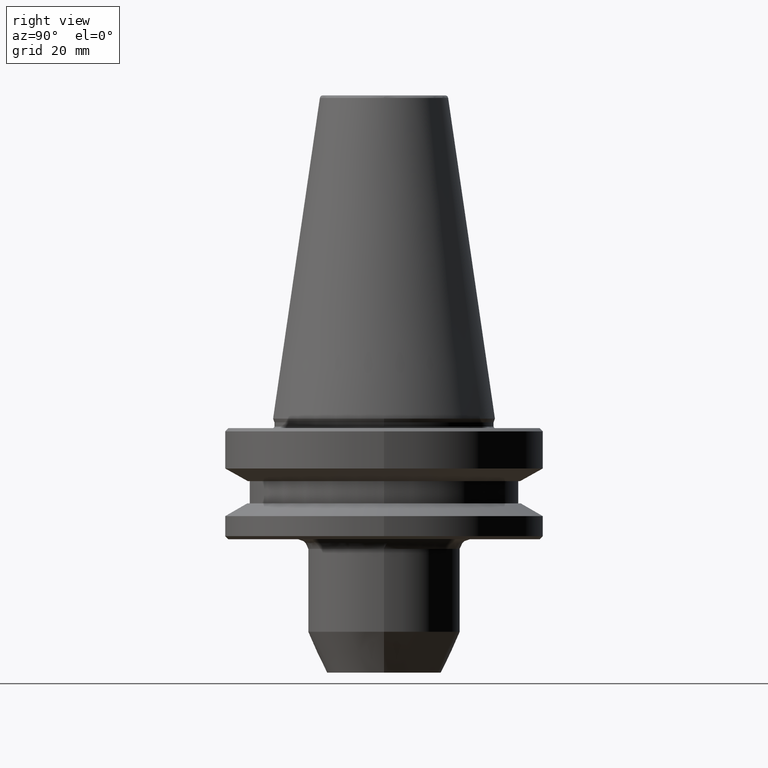
[diagram: clean part render]
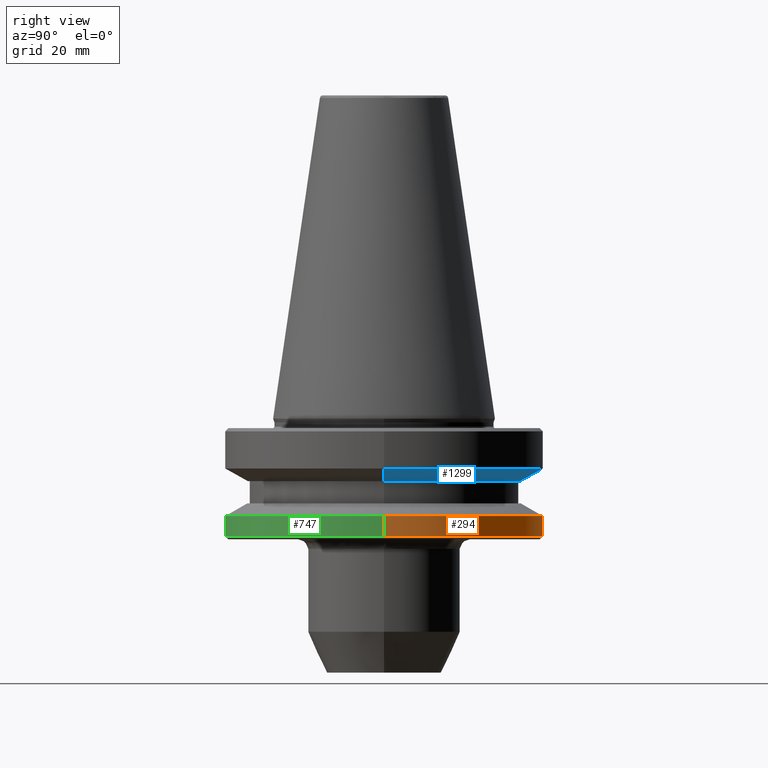
[diagram: same view with three faces highlighted in distinct colors, each labeled with its STEP entity id]
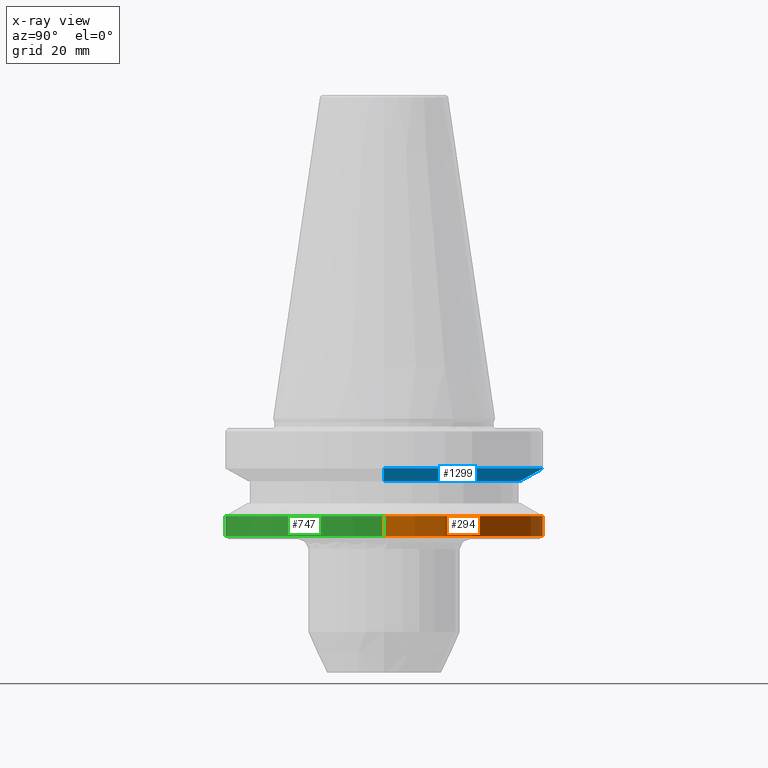
[diagram: x-ray of the same camera — body ghosted, the three highlighted faces saturated]
A machine part, right view with three faces highlighted in distinct colors.
The next image is the same camera in x-ray (body ghosted, the three faces saturated) — at least one of them is partly hidden behind the body in this view.
Their STEP definitions:

[orange] entity #294 — the highlighted cylindrical surface (partial cylindrical patch) has radius 50 mm, axis along (0, 0, 1).
#16 = DIRECTION ( 'NONE',  ( 0.0000000000000000000, 0.0000000000000000000, 1.000000000000000000 ) ) ;
#25 = VERTEX_POINT ( 'NONE', #1159 ) ;
#57 = VECTOR ( 'NONE', #1142, 1000.000000000000000 ) ;
#83 = EDGE_CURVE ( 'NONE', #25, #229, #196, .T. ) ;
#133 = CIRCLE ( 'NONE', #1103, 50.00000000000000000 ) ;
#159 = ORIENTED_EDGE ( 'NONE', *, *, #83, .F. ) ;
#168 = CIRCLE ( 'NONE', #873, 50.00000000000000000 ) ;
#184 = CIRCLE ( 'NONE', #708, 50.00000000000000000 ) ;
#196 = LINE ( 'NONE', #354, #57 ) ;
#216 = VERTEX_POINT ( 'NONE', #488 ) ;
#229 = VERTEX_POINT ( 'NONE', #1056 ) ;
#235 = CYLINDRICAL_SURFACE ( 'NONE', #1060, 50.00000000000000000 ) ;
#294 = ADVANCED_FACE ( 'NONE', ( #893 ), #235, .T. ) ;
#310 = ORIENTED_EDGE ( 'NONE', *, *, #417, .T. ) ;
#354 = CARTESIAN_POINT ( 'NONE',  ( 50.00000000000000000, 0.0000000000000000000, 124.5046326327850600 ) ) ;
#358 = ORIENTED_EDGE ( 'NONE', *, *, #581, .F. ) ;
#417 = EDGE_CURVE ( 'NONE', #1315, #1010, #1109, .T. ) ;
#436 = CARTESIAN_POINT ( 'NONE',  ( -50.00000000000000000, 6.123233995736766100E-015, -37.00000000000002100 ) ) ;
#488 = CARTESIAN_POINT ( 'NONE',  ( 0.0000000000000000000, 50.00000000000000000, -30.69977999677324500 ) ) ;
#496 = ORIENTED_EDGE ( 'NONE', *, *, #497, .T. ) ;
#497 = EDGE_CURVE ( 'NONE', #25, #1315, #168, .T. ) ;
#540 = DIRECTION ( 'NONE',  ( -1.000000000000000000, -8.881784197001252300E-016, 0.0000000000000000000 ) ) ;
#543 = DIRECTION ( 'NONE',  ( -0.0000000000000000000, -0.0000000000000000000, 1.000000000000000000 ) ) ;
#544 = CARTESIAN_POINT ( 'NONE',  ( 0.0000000000000000000, 0.0000000000000000000, -30.69977999677324500 ) ) ;
#555 = VECTOR ( 'NONE', #1324, 1000.000000000000000 ) ;
#581 = EDGE_CURVE ( 'NONE', #229, #216, #133, .T. ) ;
#703 = ORIENTED_EDGE ( 'NONE', *, *, #1220, .F. ) ;
#708 = AXIS2_PLACEMENT_3D ( 'NONE', #544, #543, #540 ) ;
#715 = DIRECTION ( 'NONE',  ( 1.000000000000000000, 0.0000000000000000000, 0.0000000000000000000 ) ) ;
#814 = CARTESIAN_POINT ( 'NONE',  ( -50.00000000000000000, 6.123233995736766100E-015, -30.69977999677324500 ) ) ;
#832 = CARTESIAN_POINT ( 'NONE',  ( 0.0000000000000000000, 0.0000000000000000000, 124.5046326327850600 ) ) ;
#873 = AXIS2_PLACEMENT_3D ( 'NONE', #1245, #1321, #1243 ) ;
#893 = FACE_OUTER_BOUND ( 'NONE', #1266, .T. ) ;
#1010 = VERTEX_POINT ( 'NONE', #814 ) ;
#1056 = CARTESIAN_POINT ( 'NONE',  ( 50.00000000000000000, 0.0000000000000000000, -30.69977999677324500 ) ) ;
#1058 = CARTESIAN_POINT ( 'NONE',  ( 0.0000000000000000000, 0.0000000000000000000, -30.69977999677324500 ) ) ;
#1060 = AXIS2_PLACEMENT_3D ( 'NONE', #832, #16, #715 ) ;
#1103 = AXIS2_PLACEMENT_3D ( 'NONE', #1058, #1108, #1204 ) ;
#1108 = DIRECTION ( 'NONE',  ( -0.0000000000000000000, -0.0000000000000000000, 1.000000000000000000 ) ) ;
#1109 = LINE ( 'NONE', #1310, #555 ) ;
#1142 = DIRECTION ( 'NONE',  ( 0.0000000000000000000, 0.0000000000000000000, 1.000000000000000000 ) ) ;
#1159 = CARTESIAN_POINT ( 'NONE',  ( 50.00000000000000000, 0.0000000000000000000, -37.00000000000002100 ) ) ;
#1204 = DIRECTION ( 'NONE',  ( -1.000000000000000000, 0.0000000000000000000, 0.0000000000000000000 ) ) ;
#1220 = EDGE_CURVE ( 'NONE', #216, #1010, #184, .T. ) ;
#1243 = DIRECTION ( 'NONE',  ( 1.000000000000000000, 0.0000000000000000000, 0.0000000000000000000 ) ) ;
#1245 = CARTESIAN_POINT ( 'NONE',  ( 0.0000000000000000000, 0.0000000000000000000, -37.00000000000002100 ) ) ;
#1266 = EDGE_LOOP ( 'NONE', ( #496, #310, #703, #358, #159 ) ) ;
#1310 = CARTESIAN_POINT ( 'NONE',  ( -50.00000000000000000, 6.123233995736766100E-015, 124.5046326327850600 ) ) ;
#1315 = VERTEX_POINT ( 'NONE', #436 ) ;
#1321 = DIRECTION ( 'NONE',  ( 0.0000000000000000000, 0.0000000000000000000, 1.000000000000000000 ) ) ;
#1324 = DIRECTION ( 'NONE',  ( 0.0000000000000000000, 0.0000000000000000000, 1.000000000000000000 ) ) ;

[blue] entity #1299 — the highlighted conical surface has half-angle 60 deg.
#108 = VERTEX_POINT ( 'NONE', #521 ) ;
#173 = ORIENTED_EDGE ( 'NONE', *, *, #1100, .F. ) ;
#264 = EDGE_LOOP ( 'NONE', ( #545, #559, #734, #173 ) ) ;
#307 = VECTOR ( 'NONE', #438, 1000.000000000000000 ) ;
#405 = AXIS2_PLACEMENT_3D ( 'NONE', #466, #459, #485 ) ;
#411 = DIRECTION ( 'NONE',  ( 1.000000000000000000, 0.0000000000000000000, 0.0000000000000000000 ) ) ;
#415 = DIRECTION ( 'NONE',  ( 0.0000000000000000000, -0.0000000000000000000, 1.000000000000000000 ) ) ;
#420 = CARTESIAN_POINT ( 'NONE',  ( 0.0000000000000000000, 0.0000000000000000000, -19.70000000000001000 ) ) ;
#438 = DIRECTION ( 'NONE',  ( -0.8660254037844388200, 1.060575238724907200E-016, 0.4999999999999997200 ) ) ;
#455 = CARTESIAN_POINT ( 'NONE',  ( -50.00000000000000000, 6.123233995736766100E-015, -15.70022000322675400 ) ) ;
#459 = DIRECTION ( 'NONE',  ( 0.0000000000000000000, -0.0000000000000000000, 1.000000000000000000 ) ) ;
#466 = CARTESIAN_POINT ( 'NONE',  ( 0.0000000000000000000, 0.0000000000000000000, -15.70022000322675400 ) ) ;
#483 = VERTEX_POINT ( 'NONE', #1326 ) ;
#485 = DIRECTION ( 'NONE',  ( 1.000000000000000000, 0.0000000000000000000, 0.0000000000000000000 ) ) ;
#521 = CARTESIAN_POINT ( 'NONE',  ( -50.00000000000000000, 6.123233995736766100E-015, -15.70022000322675400 ) ) ;
#545 = ORIENTED_EDGE ( 'NONE', *, *, #1323, .T. ) ;
#549 = DIRECTION ( 'NONE',  ( 1.000000000000000000, 0.0000000000000000000, 0.0000000000000000000 ) ) ;
#551 = DIRECTION ( 'NONE',  ( 0.0000000000000000000, 0.0000000000000000000, 1.000000000000000000 ) ) ;
#552 = CARTESIAN_POINT ( 'NONE',  ( 0.0000000000000000000, 0.0000000000000000000, -15.70022000322675400 ) ) ;
#559 = ORIENTED_EDGE ( 'NONE', *, *, #1306, .T. ) ;
#571 = AXIS2_PLACEMENT_3D ( 'NONE', #552, #551, #549 ) ;
#680 = CARTESIAN_POINT ( 'NONE',  ( 50.00000000000000000, 0.0000000000000000000, -15.70022000322675400 ) ) ;
#734 = ORIENTED_EDGE ( 'NONE', *, *, #1216, .F. ) ;
#749 = DIRECTION ( 'NONE',  ( 0.8660254037844388200, 0.0000000000000000000, 0.4999999999999997200 ) ) ;
#784 = CARTESIAN_POINT ( 'NONE',  ( 50.00000000000000000, 0.0000000000000000000, -15.70022000322675400 ) ) ;
#847 = AXIS2_PLACEMENT_3D ( 'NONE', #420, #415, #411 ) ;
#862 = CONICAL_SURFACE ( 'NONE', #405, 50.00000000000000000, 1.047197551196598100 ) ;
#877 = VERTEX_POINT ( 'NONE', #892 ) ;
#892 = CARTESIAN_POINT ( 'NONE',  ( -43.07217782649103600, 5.699027233244276000E-015, -19.70000000000001000 ) ) ;
#896 = FACE_OUTER_BOUND ( 'NONE', #264, .T. ) ;
#1006 = LINE ( 'NONE', #680, #1009 ) ;
#1009 = VECTOR ( 'NONE', #749, 1000.000000000000000 ) ;
#1033 = VERTEX_POINT ( 'NONE', #784 ) ;
#1100 = EDGE_CURVE ( 'NONE', #483, #1033, #1006, .T. ) ;
#1160 = CIRCLE ( 'NONE', #847, 43.07217782649103600 ) ;
#1167 = LINE ( 'NONE', #455, #307 ) ;
#1216 = EDGE_CURVE ( 'NONE', #1033, #108, #1293, .T. ) ;
#1293 = CIRCLE ( 'NONE', #571, 50.00000000000000000 ) ;
#1299 = ADVANCED_FACE ( 'NONE', ( #896 ), #862, .T. ) ;
#1306 = EDGE_CURVE ( 'NONE', #877, #108, #1167, .T. ) ;
#1323 = EDGE_CURVE ( 'NONE', #483, #877, #1160, .T. ) ;
#1326 = CARTESIAN_POINT ( 'NONE',  ( 43.07217782649103600, 0.0000000000000000000, -19.70000000000001000 ) ) ;

[green] entity #747 — the highlighted cylindrical surface (partial cylindrical patch) has radius 50 mm, axis along (0, 0, 1).
#13 = EDGE_CURVE ( 'NONE', #1315, #25, #288, .T. ) ;
#21 = AXIS2_PLACEMENT_3D ( 'NONE', #1164, #1210, #100 ) ;
#25 = VERTEX_POINT ( 'NONE', #1159 ) ;
#39 = AXIS2_PLACEMENT_3D ( 'NONE', #1087, #1095, #1088 ) ;
#57 = VECTOR ( 'NONE', #1142, 1000.000000000000000 ) ;
#76 = EDGE_CURVE ( 'NONE', #1010, #1150, #482, .T. ) ;
#83 = EDGE_CURVE ( 'NONE', #25, #229, #196, .T. ) ;
#100 = DIRECTION ( 'NONE',  ( 1.000000000000000000, 0.0000000000000000000, 0.0000000000000000000 ) ) ;
#147 = EDGE_CURVE ( 'NONE', #1150, #229, #334, .T. ) ;
#196 = LINE ( 'NONE', #354, #57 ) ;
#199 = EDGE_LOOP ( 'NONE', ( #520, #1137, #542, #1148, #487 ) ) ;
#229 = VERTEX_POINT ( 'NONE', #1056 ) ;
#232 = AXIS2_PLACEMENT_3D ( 'NONE', #924, #598, #505 ) ;
#288 = CIRCLE ( 'NONE', #21, 50.00000000000000000 ) ;
#313 = DIRECTION ( 'NONE',  ( -1.000000000000000000, 0.0000000000000000000, 0.0000000000000000000 ) ) ;
#334 = CIRCLE ( 'NONE', #813, 50.00000000000000000 ) ;
#354 = CARTESIAN_POINT ( 'NONE',  ( 50.00000000000000000, 0.0000000000000000000, 124.5046326327850600 ) ) ;
#408 = CYLINDRICAL_SURFACE ( 'NONE', #39, 50.00000000000000000 ) ;
#417 = EDGE_CURVE ( 'NONE', #1315, #1010, #1109, .T. ) ;
#436 = CARTESIAN_POINT ( 'NONE',  ( -50.00000000000000000, 6.123233995736766100E-015, -37.00000000000002100 ) ) ;
#482 = CIRCLE ( 'NONE', #232, 50.00000000000000000 ) ;
#487 = ORIENTED_EDGE ( 'NONE', *, *, #76, .F. ) ;
#505 = DIRECTION ( 'NONE',  ( -1.000000000000000000, 0.0000000000000000000, 0.0000000000000000000 ) ) ;
#520 = ORIENTED_EDGE ( 'NONE', *, *, #417, .F. ) ;
#542 = ORIENTED_EDGE ( 'NONE', *, *, #83, .T. ) ;
#555 = VECTOR ( 'NONE', #1324, 1000.000000000000000 ) ;
#598 = DIRECTION ( 'NONE',  ( -0.0000000000000000000, -0.0000000000000000000, 1.000000000000000000 ) ) ;
#634 = CARTESIAN_POINT ( 'NONE',  ( 6.123233995736766100E-015, -50.00000000000000000, -30.69977999677324500 ) ) ;
#747 = ADVANCED_FACE ( 'NONE', ( #1180 ), #408, .T. ) ;
#813 = AXIS2_PLACEMENT_3D ( 'NONE', #1098, #1173, #313 ) ;
#814 = CARTESIAN_POINT ( 'NONE',  ( -50.00000000000000000, 6.123233995736766100E-015, -30.69977999677324500 ) ) ;
#924 = CARTESIAN_POINT ( 'NONE',  ( 0.0000000000000000000, 0.0000000000000000000, -30.69977999677324500 ) ) ;
#1010 = VERTEX_POINT ( 'NONE', #814 ) ;
#1056 = CARTESIAN_POINT ( 'NONE',  ( 50.00000000000000000, 0.0000000000000000000, -30.69977999677324500 ) ) ;
#1087 = CARTESIAN_POINT ( 'NONE',  ( 0.0000000000000000000, 0.0000000000000000000, 124.5046326327850600 ) ) ;
#1088 = DIRECTION ( 'NONE',  ( 1.000000000000000000, 0.0000000000000000000, 0.0000000000000000000 ) ) ;
#1095 = DIRECTION ( 'NONE',  ( 0.0000000000000000000, 0.0000000000000000000, 1.000000000000000000 ) ) ;
#1098 = CARTESIAN_POINT ( 'NONE',  ( 0.0000000000000000000, 0.0000000000000000000, -30.69977999677324500 ) ) ;
#1109 = LINE ( 'NONE', #1310, #555 ) ;
#1137 = ORIENTED_EDGE ( 'NONE', *, *, #13, .T. ) ;
#1142 = DIRECTION ( 'NONE',  ( 0.0000000000000000000, 0.0000000000000000000, 1.000000000000000000 ) ) ;
#1148 = ORIENTED_EDGE ( 'NONE', *, *, #147, .F. ) ;
#1150 = VERTEX_POINT ( 'NONE', #634 ) ;
#1159 = CARTESIAN_POINT ( 'NONE',  ( 50.00000000000000000, 0.0000000000000000000, -37.00000000000002100 ) ) ;
#1164 = CARTESIAN_POINT ( 'NONE',  ( 0.0000000000000000000, 0.0000000000000000000, -37.00000000000002100 ) ) ;
#1173 = DIRECTION ( 'NONE',  ( -0.0000000000000000000, -0.0000000000000000000, 1.000000000000000000 ) ) ;
#1180 = FACE_OUTER_BOUND ( 'NONE', #199, .T. ) ;
#1210 = DIRECTION ( 'NONE',  ( 0.0000000000000000000, 0.0000000000000000000, 1.000000000000000000 ) ) ;
#1310 = CARTESIAN_POINT ( 'NONE',  ( -50.00000000000000000, 6.123233995736766100E-015, 124.5046326327850600 ) ) ;
#1315 = VERTEX_POINT ( 'NONE', #436 ) ;
#1324 = DIRECTION ( 'NONE',  ( 0.0000000000000000000, 0.0000000000000000000, 1.000000000000000000 ) ) ;